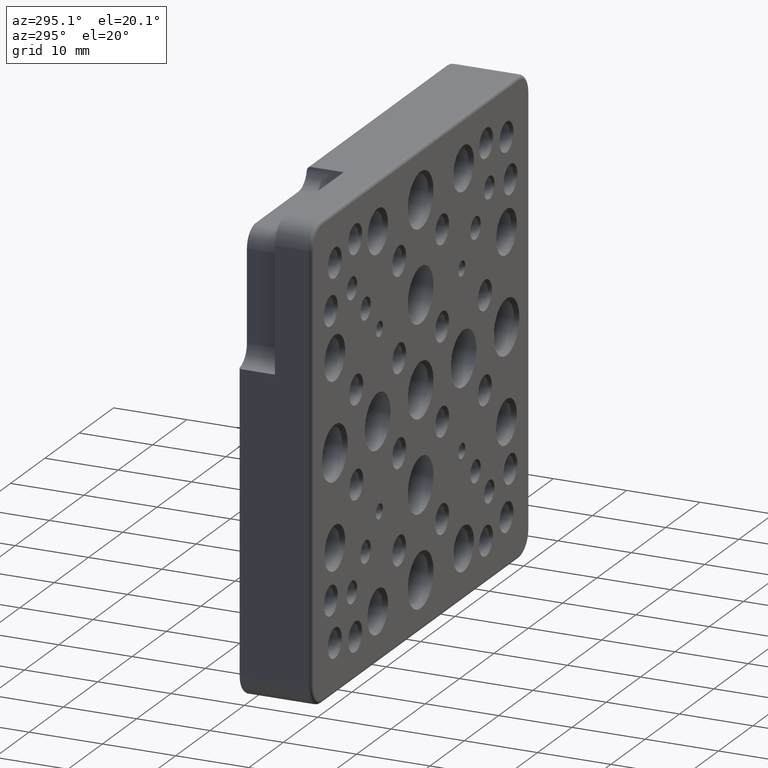
[diagram: clean part render]
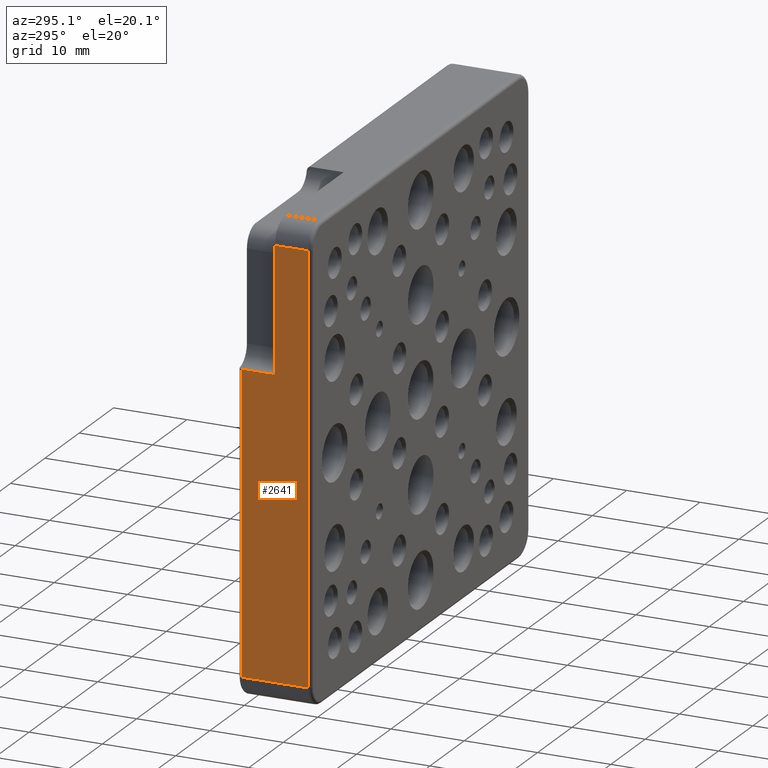
[diagram: same view with one face highlighted and labeled with its STEP entity id]
A machine part, auxiliary view. The second image highlights one B-rep face of the part: STEP entity #2641.
In plain terms, the highlighted planar face has unit normal (1, 0, -0).
Its self-contained STEP definition (entity closure, byte-faithful):
#32 = ORIENTED_EDGE ( 'NONE', *, *, #1965, .T. ) ;
#481 = CARTESIAN_POINT ( 'NONE',  ( -31.74999999999998579, 0.5000000000000004441, 28.74999999999999645 ) ) ;
#505 = VERTEX_POINT ( 'NONE', #481 ) ;
#598 = ORIENTED_EDGE ( 'NONE', *, *, #2581, .T. ) ;
#717 = LINE ( 'NONE', #1699, #1876 ) ;
#850 = VERTEX_POINT ( 'NONE', #2174 ) ;
#874 = VECTOR ( 'NONE', #3848, 1000.000000000000000 ) ;
#976 = DIRECTION ( 'NONE',  ( -0.000000000000000000, 1.000000000000000000, -0.000000000000000000 ) ) ;
#1026 = LINE ( 'NONE', #1658, #2761 ) ;
#1193 = VECTOR ( 'NONE', #2072, 1000.000000000000000 ) ;
#1339 = VERTEX_POINT ( 'NONE', #3084 ) ;
#1354 = CARTESIAN_POINT ( 'NONE',  ( -31.75000000000000000, 9.500000000000000000, -28.75000000000000000 ) ) ;
#1374 = ORIENTED_EDGE ( 'NONE', *, *, #4023, .F. ) ;
#1419 = CARTESIAN_POINT ( 'NONE',  ( -31.74999999999998579, 10.00000000000000000, 28.74999999999999645 ) ) ;
#1645 = EDGE_CURVE ( 'NONE', #1339, #2952, #2103, .T. ) ;
#1646 = DIRECTION ( 'NONE',  ( -0.000000000000000000, 1.000000000000000000, -0.000000000000000000 ) ) ;
#1658 = CARTESIAN_POINT ( 'NONE',  ( -31.75000000000000000, 10.00000000000000000, -28.75000000000000000 ) ) ;
#1699 = CARTESIAN_POINT ( 'NONE',  ( -31.74999999999998579, 5.000000000000000000, 11.74999999999999645 ) ) ;
#1828 = VERTEX_POINT ( 'NONE', #4266 ) ;
#1852 = LINE ( 'NONE', #4203, #4294 ) ;
#1876 = VECTOR ( 'NONE', #976, 1000.000000000000000 ) ;
#1914 = VECTOR ( 'NONE', #1646, 1000.000000000000000 ) ;
#1952 = ORIENTED_EDGE ( 'NONE', *, *, #3416, .T. ) ;
#1965 = EDGE_CURVE ( 'NONE', #4026, #1339, #717, .T. ) ;
#2072 = DIRECTION ( 'NONE',  ( 2.185478394931410575E-16, -0.000000000000000000, 1.000000000000000000 ) ) ;
#2103 = LINE ( 'NONE', #3467, #874 ) ;
#2174 = CARTESIAN_POINT ( 'NONE',  ( -31.74999999999998579, 5.000000000000000000, 28.75000000000000000 ) ) ;
#2216 = DIRECTION ( 'NONE',  ( 0.000000000000000000, 0.000000000000000000, 1.000000000000000000 ) ) ;
#2271 = LINE ( 'NONE', #2961, #1193 ) ;
#2350 = LINE ( 'NONE', #1419, #1914 ) ;
#2581 = EDGE_CURVE ( 'NONE', #1828, #505, #2271, .T. ) ;
#2591 = EDGE_CURVE ( 'NONE', #2952, #1828, #1026, .T. ) ;
#2641 = ADVANCED_FACE ( 'NONE', ( #3073 ), #3365, .F. ) ;
#2761 = VECTOR ( 'NONE', #3725, 1000.000000000000000 ) ;
#2929 = ORIENTED_EDGE ( 'NONE', *, *, #2591, .T. ) ;
#2952 = VERTEX_POINT ( 'NONE', #1354 ) ;
#2961 = CARTESIAN_POINT ( 'NONE',  ( -31.75000000000000000, 0.5000000000000004441, -31.75000000000000000 ) ) ;
#3024 = DIRECTION ( 'NONE',  ( -2.185478394931410575E-16, 0.000000000000000000, -1.000000000000000000 ) ) ;
#3073 = FACE_OUTER_BOUND ( 'NONE', #3239, .T. ) ;
#3084 = CARTESIAN_POINT ( 'NONE',  ( -31.74999999999998579, 9.500000000000000000, 11.74999999999999645 ) ) ;
#3193 = AXIS2_PLACEMENT_3D ( 'NONE', #3437, #4372, #3024 ) ;
#3194 = CARTESIAN_POINT ( 'NONE',  ( -31.74999999999998579, 5.000000000000000000, 11.74999999999999645 ) ) ;
#3239 = EDGE_LOOP ( 'NONE', ( #1374, #32, #4081, #2929, #598, #1952 ) ) ;
#3365 = PLANE ( 'NONE',  #3193 ) ;
#3416 = EDGE_CURVE ( 'NONE', #505, #850, #2350, .T. ) ;
#3437 = CARTESIAN_POINT ( 'NONE',  ( -31.75000000000000000, 10.00000000000000000, -31.75000000000000000 ) ) ;
#3467 = CARTESIAN_POINT ( 'NONE',  ( -31.75000000000000000, 9.500000000000000000, -28.75000000000000000 ) ) ;
#3725 = DIRECTION ( 'NONE',  ( 0.000000000000000000, -1.000000000000000000, 0.000000000000000000 ) ) ;
#3848 = DIRECTION ( 'NONE',  ( -2.185478394931410575E-16, -0.000000000000000000, -1.000000000000000000 ) ) ;
#4023 = EDGE_CURVE ( 'NONE', #4026, #850, #1852, .T. ) ;
#4026 = VERTEX_POINT ( 'NONE', #3194 ) ;
#4081 = ORIENTED_EDGE ( 'NONE', *, *, #1645, .T. ) ;
#4203 = CARTESIAN_POINT ( 'NONE',  ( -31.74999999999998579, 5.000000000000000000, 11.74999999999999645 ) ) ;
#4266 = CARTESIAN_POINT ( 'NONE',  ( -31.75000000000000000, 0.5000000000000004441, -28.75000000000000000 ) ) ;
#4294 = VECTOR ( 'NONE', #2216, 1000.000000000000000 ) ;
#4372 = DIRECTION ( 'NONE',  ( 1.000000000000000000, 0.000000000000000000, -2.185478394931410575E-16 ) ) ;